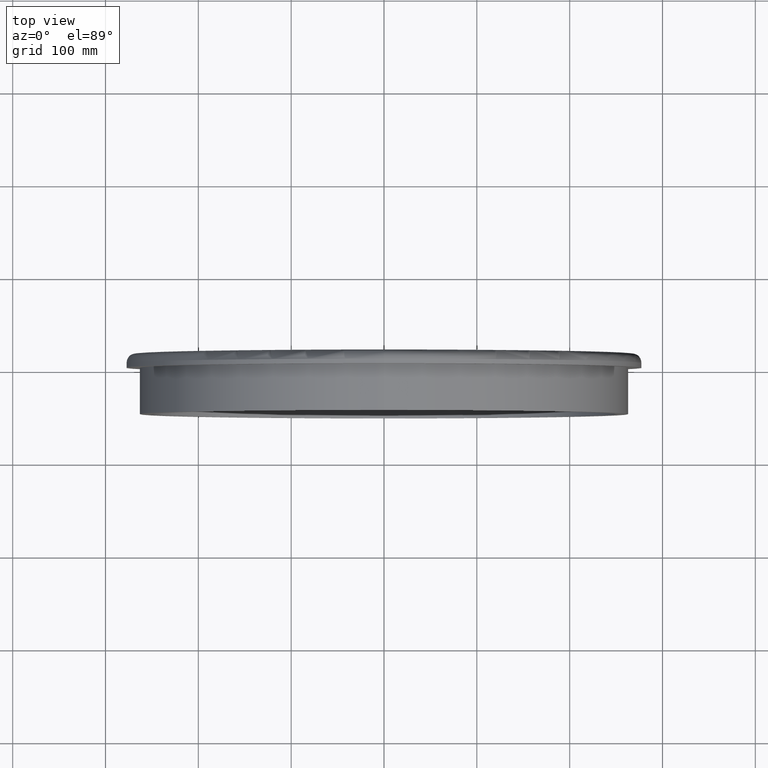
[diagram: clean part render]
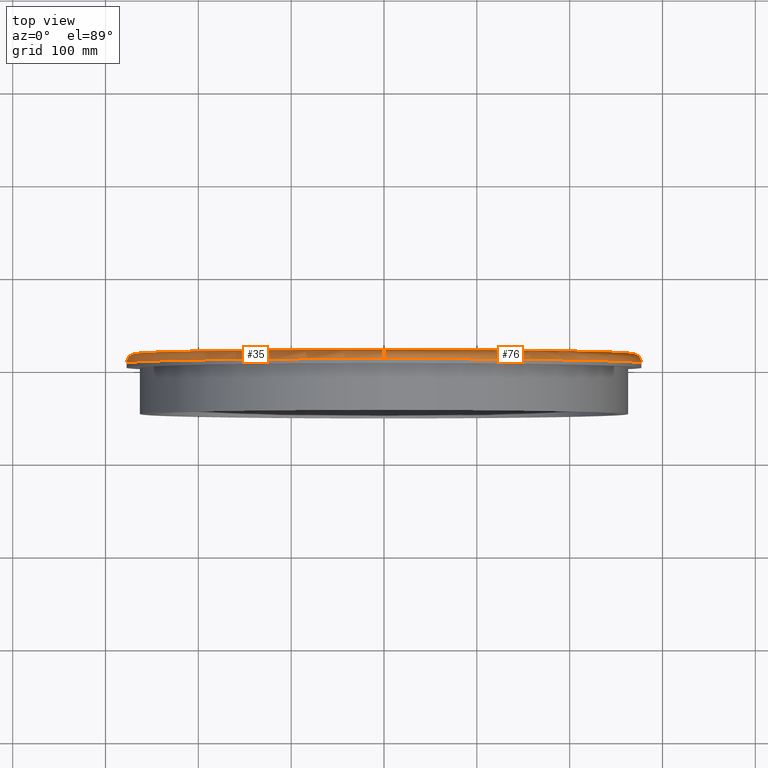
[diagram: same view with one multi-face feature highlighted, each face labeled with its STEP entity id]
A machine part, top view. The highlighted faces form ONE feature: a constant-radius fillet chain: 2 tangent blend faces with common blend radius 10 mm. The faces share edges in the B-rep.
Their STEP definitions:
[1] entity #76 (Torus):
#6 = DIRECTION ( 'NONE',  ( -1.000000000000000000, 0.0000000000000000000, 0.0000000000000000000 ) ) ;
#9 = ORIENTED_EDGE ( 'NONE', *, *, #65, .T. ) ;
#11 = DIRECTION ( 'NONE',  ( 0.0000000000000000000, 0.0000000000000000000, 1.000000000000000000 ) ) ;
#14 = AXIS2_PLACEMENT_3D ( 'NONE', #125, #174, #11 ) ;
#20 = CARTESIAN_POINT ( 'NONE',  ( 0.0000000000000000000, 4.999999999999999112, 268.0000000000000000 ) ) ;
#22 = CARTESIAN_POINT ( 'NONE',  ( 3.404518101629642167E-14, 4.999999999999999112, 278.0000000000000000 ) ) ;
#44 = VERTEX_POINT ( 'NONE', #318 ) ;
#45 = DIRECTION ( 'NONE',  ( 1.000000000000000000, -0.0000000000000000000, 1.224646799147353207E-16 ) ) ;
#50 = DIRECTION ( 'NONE',  ( 0.0000000000000000000, 0.0000000000000000000, 1.000000000000000000 ) ) ;
#58 = ORIENTED_EDGE ( 'NONE', *, *, #538, .F. ) ;
#62 = CIRCLE ( 'NONE', #14, 278.0000000000000000 ) ;
#65 = EDGE_CURVE ( 'NONE', #89, #44, #204, .T. ) ;
#76 = ADVANCED_FACE ( 'NONE', ( #443 ), #401, .T. ) ;
#89 = VERTEX_POINT ( 'NONE', #91 ) ;
#91 = CARTESIAN_POINT ( 'NONE',  ( 0.0000000000000000000, 4.999999999999999112, -278.0000000000000000 ) ) ;
#125 = CARTESIAN_POINT ( 'NONE',  ( 0.0000000000000000000, 4.999999999999999112, 0.0000000000000000000 ) ) ;
#139 = VERTEX_POINT ( 'NONE', #226 ) ;
#174 = DIRECTION ( 'NONE',  ( -0.0000000000000000000, -1.000000000000000000, -0.0000000000000000000 ) ) ;
#181 = DIRECTION ( 'NONE',  ( 0.0000000000000000000, 0.0000000000000000000, 1.000000000000000000 ) ) ;
#192 = DIRECTION ( 'NONE',  ( 0.0000000000000000000, 1.000000000000000000, 0.0000000000000000000 ) ) ;
#204 = CIRCLE ( 'NONE', #223, 10.00000000000000888 ) ;
#223 = AXIS2_PLACEMENT_3D ( 'NONE', #479, #45, #442 ) ;
#225 = ORIENTED_EDGE ( 'NONE', *, *, #301, .F. ) ;
#226 = CARTESIAN_POINT ( 'NONE',  ( 0.0000000000000000000, 15.00000000000000000, 268.0000000000000000 ) ) ;
#232 = DIRECTION ( 'NONE',  ( 0.0000000000000000000, 0.0000000000000000000, 1.000000000000000000 ) ) ;
#265 = AXIS2_PLACEMENT_3D ( 'NONE', #20, #6, #181 ) ;
#274 = AXIS2_PLACEMENT_3D ( 'NONE', #370, #192, #232 ) ;
#301 = EDGE_CURVE ( 'NONE', #139, #44, #508, .T. ) ;
#313 = VERTEX_POINT ( 'NONE', #22 ) ;
#318 = CARTESIAN_POINT ( 'NONE',  ( 3.343285761672273962E-14, 15.00000000000000000, -268.0000000000000000 ) ) ;
#368 = DIRECTION ( 'NONE',  ( 0.0000000000000000000, 1.000000000000000000, 0.0000000000000000000 ) ) ;
#370 = CARTESIAN_POINT ( 'NONE',  ( 0.0000000000000000000, 15.00000000000000000, 0.0000000000000000000 ) ) ;
#401 = TOROIDAL_SURFACE ( 'NONE', #462, 268.0000000000000000, 10.00000000000000000 ) ;
#436 = EDGE_CURVE ( 'NONE', #313, #139, #439, .T. ) ;
#439 = CIRCLE ( 'NONE', #265, 10.00000000000000888 ) ;
#442 = DIRECTION ( 'NONE',  ( 1.224646799147349509E-16, 0.0000000000000000000, -1.000000000000000000 ) ) ;
#443 = FACE_OUTER_BOUND ( 'NONE', #491, .T. ) ;
#462 = AXIS2_PLACEMENT_3D ( 'NONE', #556, #368, #50 ) ;
#478 = ORIENTED_EDGE ( 'NONE', *, *, #436, .F. ) ;
#479 = CARTESIAN_POINT ( 'NONE',  ( 3.282053421714907019E-14, 4.999999999999999112, -268.0000000000000000 ) ) ;
#491 = EDGE_LOOP ( 'NONE', ( #58, #9, #225, #478 ) ) ;
#508 = CIRCLE ( 'NONE', #274, 268.0000000000000000 ) ;
#538 = EDGE_CURVE ( 'NONE', #89, #313, #62, .T. ) ;
#556 = CARTESIAN_POINT ( 'NONE',  ( 0.0000000000000000000, 4.999999999999999112, 0.0000000000000000000 ) ) ;
[2] entity #35 (Torus):
#2 = DIRECTION ( 'NONE',  ( 0.0000000000000000000, 0.0000000000000000000, 1.000000000000000000 ) ) ;
#6 = DIRECTION ( 'NONE',  ( -1.000000000000000000, 0.0000000000000000000, 0.0000000000000000000 ) ) ;
#20 = CARTESIAN_POINT ( 'NONE',  ( 0.0000000000000000000, 4.999999999999999112, 268.0000000000000000 ) ) ;
#21 = ORIENTED_EDGE ( 'NONE', *, *, #221, .F. ) ;
#22 = CARTESIAN_POINT ( 'NONE',  ( 3.404518101629642167E-14, 4.999999999999999112, 278.0000000000000000 ) ) ;
#35 = ADVANCED_FACE ( 'NONE', ( #516 ), #429, .T. ) ;
#44 = VERTEX_POINT ( 'NONE', #318 ) ;
#45 = DIRECTION ( 'NONE',  ( 1.000000000000000000, -0.0000000000000000000, 1.224646799147353207E-16 ) ) ;
#64 = DIRECTION ( 'NONE',  ( -0.0000000000000000000, -1.000000000000000000, -0.0000000000000000000 ) ) ;
#65 = EDGE_CURVE ( 'NONE', #89, #44, #204, .T. ) ;
#89 = VERTEX_POINT ( 'NONE', #91 ) ;
#91 = CARTESIAN_POINT ( 'NONE',  ( 0.0000000000000000000, 4.999999999999999112, -278.0000000000000000 ) ) ;
#92 = CIRCLE ( 'NONE', #264, 268.0000000000000000 ) ;
#93 = ORIENTED_EDGE ( 'NONE', *, *, #65, .F. ) ;
#139 = VERTEX_POINT ( 'NONE', #226 ) ;
#146 = ORIENTED_EDGE ( 'NONE', *, *, #436, .T. ) ;
#173 = DIRECTION ( 'NONE',  ( 0.0000000000000000000, 1.000000000000000000, 0.0000000000000000000 ) ) ;
#181 = DIRECTION ( 'NONE',  ( 0.0000000000000000000, 0.0000000000000000000, 1.000000000000000000 ) ) ;
#204 = CIRCLE ( 'NONE', #223, 10.00000000000000888 ) ;
#215 = CARTESIAN_POINT ( 'NONE',  ( 0.0000000000000000000, 4.999999999999999112, 0.0000000000000000000 ) ) ;
#221 = EDGE_CURVE ( 'NONE', #44, #139, #92, .T. ) ;
#223 = AXIS2_PLACEMENT_3D ( 'NONE', #479, #45, #442 ) ;
#226 = CARTESIAN_POINT ( 'NONE',  ( 0.0000000000000000000, 15.00000000000000000, 268.0000000000000000 ) ) ;
#227 = DIRECTION ( 'NONE',  ( 0.0000000000000000000, 1.000000000000000000, 0.0000000000000000000 ) ) ;
#238 = CIRCLE ( 'NONE', #395, 278.0000000000000000 ) ;
#264 = AXIS2_PLACEMENT_3D ( 'NONE', #329, #227, #2 ) ;
#265 = AXIS2_PLACEMENT_3D ( 'NONE', #20, #6, #181 ) ;
#267 = DIRECTION ( 'NONE',  ( 0.0000000000000000000, 0.0000000000000000000, 1.000000000000000000 ) ) ;
#313 = VERTEX_POINT ( 'NONE', #22 ) ;
#318 = CARTESIAN_POINT ( 'NONE',  ( 3.343285761672273962E-14, 15.00000000000000000, -268.0000000000000000 ) ) ;
#329 = CARTESIAN_POINT ( 'NONE',  ( 0.0000000000000000000, 15.00000000000000000, 0.0000000000000000000 ) ) ;
#395 = AXIS2_PLACEMENT_3D ( 'NONE', #530, #64, #409 ) ;
#409 = DIRECTION ( 'NONE',  ( 0.0000000000000000000, 0.0000000000000000000, 1.000000000000000000 ) ) ;
#429 = TOROIDAL_SURFACE ( 'NONE', #555, 268.0000000000000000, 10.00000000000000000 ) ;
#436 = EDGE_CURVE ( 'NONE', #313, #139, #439, .T. ) ;
#439 = CIRCLE ( 'NONE', #265, 10.00000000000000888 ) ;
#442 = DIRECTION ( 'NONE',  ( 1.224646799147349509E-16, 0.0000000000000000000, -1.000000000000000000 ) ) ;
#448 = EDGE_CURVE ( 'NONE', #313, #89, #238, .T. ) ;
#479 = CARTESIAN_POINT ( 'NONE',  ( 3.282053421714907019E-14, 4.999999999999999112, -268.0000000000000000 ) ) ;
#481 = ORIENTED_EDGE ( 'NONE', *, *, #448, .F. ) ;
#516 = FACE_OUTER_BOUND ( 'NONE', #535, .T. ) ;
#530 = CARTESIAN_POINT ( 'NONE',  ( 0.0000000000000000000, 4.999999999999999112, 0.0000000000000000000 ) ) ;
#535 = EDGE_LOOP ( 'NONE', ( #93, #481, #146, #21 ) ) ;
#555 = AXIS2_PLACEMENT_3D ( 'NONE', #215, #173, #267 ) ;